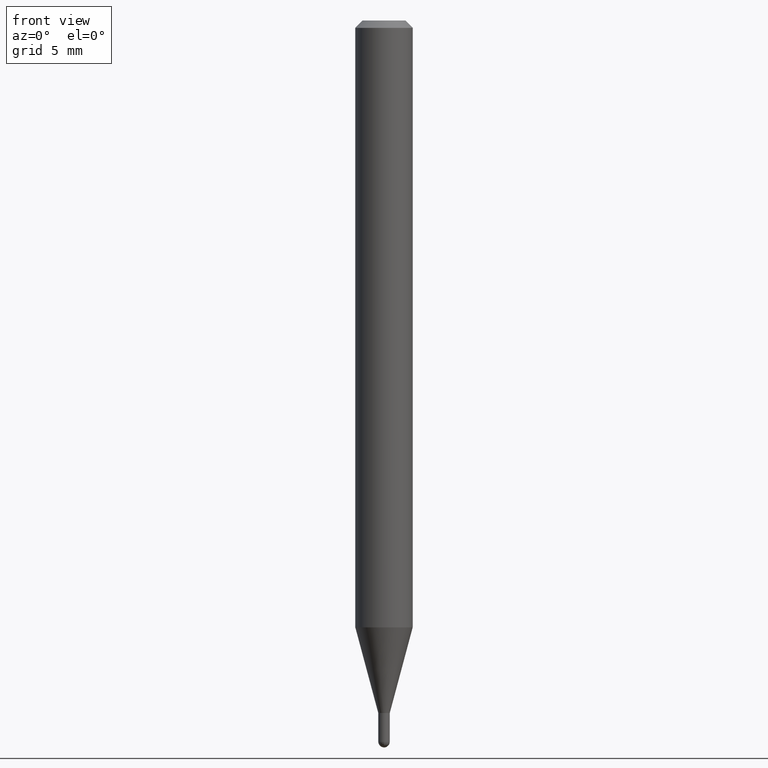
[diagram: clean part render]
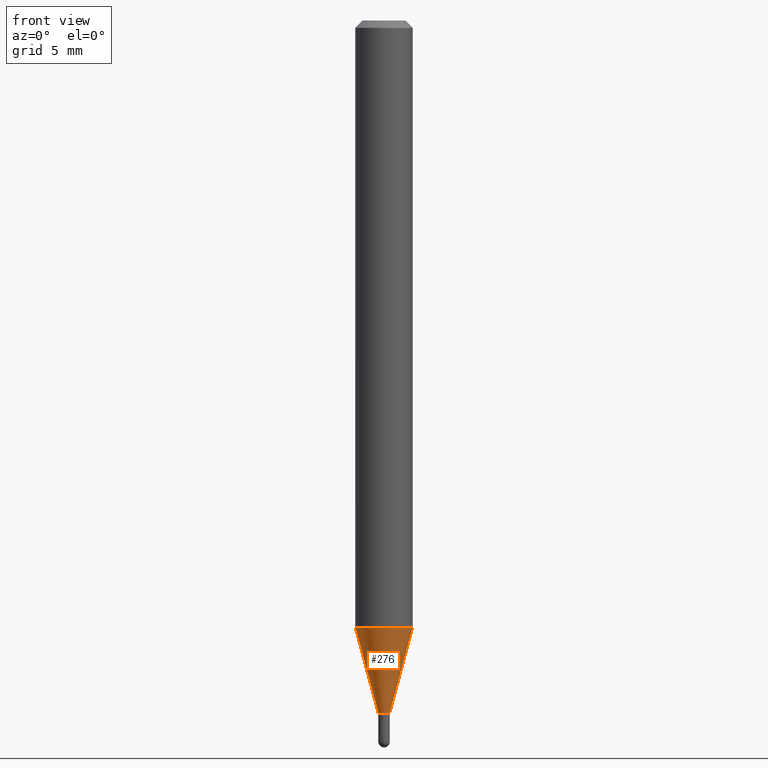
[diagram: same view with one face highlighted and labeled with its STEP entity id]
A machine part, front view. The second image highlights one B-rep face of the part: STEP entity #276.
In plain terms, the highlighted conical surface has half-angle 15 deg.
Its self-contained STEP definition (entity closure, byte-faithful):
#1 = EDGE_CURVE ( 'NONE', #434, #441, #489, .T. ) ;
#3 = VERTEX_POINT ( 'NONE', #282 ) ;
#29 = VECTOR ( 'NONE', #423, 39.37007874015748143 ) ;
#66 = EDGE_CURVE ( 'NONE', #3, #346, #250, .T. ) ;
#76 = DIRECTION ( 'NONE',  ( -2.445468806185136597E-29, 3.491481338843145583E-15, 1.000000000000000000 ) ) ;
#124 = LINE ( 'NONE', #455, #354 ) ;
#129 = CARTESIAN_POINT ( 'NONE',  ( 3.485282142575056435E-29, -4.976059204119250988E-15, -1.425199999999999800 ) ) ;
#159 = CARTESIAN_POINT ( 'NONE',  ( -0.01180000000000019922, -4.416506576626797122E-15, -1.425199999999999800 ) ) ;
#161 = CARTESIAN_POINT ( 'NONE',  ( 0.01180000000000019922, -5.058458163715949900E-15, -1.425199999999999800 ) ) ;
#166 = EDGE_CURVE ( 'NONE', #434, #3, #124, .T. ) ;
#191 = DIRECTION ( 'NONE',  ( 1.000000000000000000, -6.982962677686264344E-15, 0.000000000000000000 ) ) ;
#193 = DIRECTION ( 'NONE',  ( -2.445468806185136597E-29, 3.491481338843145583E-15, 1.000000000000000000 ) ) ;
#232 = AXIS2_PLACEMENT_3D ( 'NONE', #129, #193, #191 ) ;
#234 = ORIENTED_EDGE ( 'NONE', *, *, #66, .F. ) ;
#250 = CIRCLE ( 'NONE', #450, 0.05904999999999999832 ) ;
#252 = ORIENTED_EDGE ( 'NONE', *, *, #166, .F. ) ;
#262 = DIRECTION ( 'NONE',  ( -0.2588190451025285110, 5.211531920934594429E-15, 0.9659258262890662028 ) ) ;
#276 = ADVANCED_FACE ( 'NONE', ( #307 ), #380, .T. ) ;
#282 = CARTESIAN_POINT ( 'NONE',  ( -0.05904999999999999832, -3.940797991954035310E-15, -1.248860599342376920 ) ) ;
#284 = EDGE_CURVE ( 'NONE', #441, #346, #503, .T. ) ;
#307 = FACE_OUTER_BOUND ( 'NONE', #393, .T. ) ;
#346 = VERTEX_POINT ( 'NONE', #470 ) ;
#354 = VECTOR ( 'NONE', #262, 39.37007874015748143 ) ;
#372 = CARTESIAN_POINT ( 'NONE',  ( 3.054049638965456516E-29, -4.360373477420374803E-15, -1.248860599342376920 ) ) ;
#376 = DIRECTION ( 'NONE',  ( 1.000000000000000000, -6.982962677686265133E-15, 0.000000000000000000 ) ) ;
#380 = CONICAL_SURFACE ( 'NONE', #433, 0.01180000000000019922, 0.2617993877991574569 ) ;
#389 = ORIENTED_EDGE ( 'NONE', *, *, #1, .T. ) ;
#393 = EDGE_LOOP ( 'NONE', ( #252, #389, #482, #234 ) ) ;
#415 = DIRECTION ( 'NONE',  ( -2.445468806185136597E-29, 3.491481338843145583E-15, 1.000000000000000000 ) ) ;
#417 = CARTESIAN_POINT ( 'NONE',  ( 3.485282142575056435E-29, -4.976059204119250988E-15, -1.425199999999999800 ) ) ;
#423 = DIRECTION ( 'NONE',  ( 0.2588190451025285110, 1.565188264969565170E-15, 0.9659258262890662028 ) ) ;
#433 = AXIS2_PLACEMENT_3D ( 'NONE', #417, #76, #507 ) ;
#434 = VERTEX_POINT ( 'NONE', #159 ) ;
#441 = VERTEX_POINT ( 'NONE', #161 ) ;
#450 = AXIS2_PLACEMENT_3D ( 'NONE', #372, #415, #376 ) ;
#455 = CARTESIAN_POINT ( 'NONE',  ( -0.01180000000000019922, -4.892215161299557356E-15, -1.425199999999999800 ) ) ;
#463 = CARTESIAN_POINT ( 'NONE',  ( 0.01180000000000019922, -5.058458163715949900E-15, -1.425199999999999800 ) ) ;
#470 = CARTESIAN_POINT ( 'NONE',  ( 0.05904999999999999832, -4.772717423537748934E-15, -1.248860599342376920 ) ) ;
#482 = ORIENTED_EDGE ( 'NONE', *, *, #284, .T. ) ;
#489 = CIRCLE ( 'NONE', #232, 0.01180000000000019922 ) ;
#503 = LINE ( 'NONE', #463, #29 ) ;
#507 = DIRECTION ( 'NONE',  ( 1.000000000000000000, -6.982962677686264344E-15, 0.000000000000000000 ) ) ;